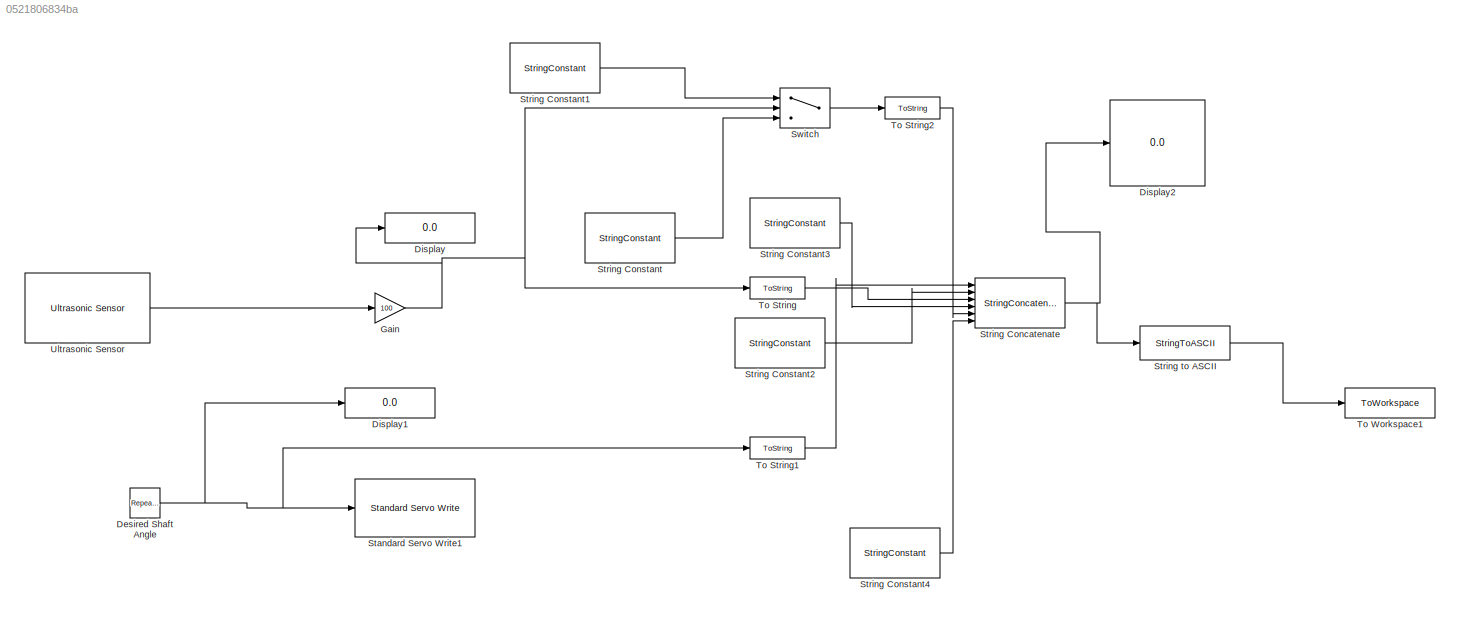
MODEL slx_0521806834ba
KIND model
CONFIG AbsTol = auto
CONFIG EnableMultiTasking = off
CONFIG FixedStep = auto
CONFIG MaxStep = auto
CONFIG MinStep = auto
CONFIG RelTol = 1e-3
CONFIG SampleTimeConstraint = Unconstrained
CONFIG SolverName = FixedStepAuto
CONFIG StartTime = 0.0
CONFIG StopTime = 5
BLOCK [Reference] Desired Shaft Angle  REF=simulink/Sources/Repeating
Sequence
Stair
  Ports = [0, 1]
  SourceBlock = simulink/Sources/Repeating\nSequence\nStair
  SourceProductBaseCode = SL
  SourceType = Repeating Sequence Stair
BLOCK [Display] Display
  Decimation = 1
  Ports = [1]
BLOCK [Display] Display1
  Decimation = 1
  Ports = [1]
BLOCK [Display] Display2
  Decimation = 1
  Ports = [1]
BLOCK [Gain] Gain
  Gain = 100
  OutDataTypeStr = uint8
  RndMeth = Nearest
BLOCK [Reference] Standard Servo Write1  REF=arduinolib/Standard Servo Write
  Ports = [1]
  SourceBlock = arduinolib/Standard Servo Write
  SourceProductBaseCode = ARDUINO
  SourceType = Arduino Standard Servo Write
BLOCK [StringConcatenate] String Concatenate
  Inputs = 6
  Ports = [6, 1]
BLOCK [StringConstant] String Constant
  String = "Obstacle"
BLOCK [StringConstant] String Constant1
  String = "No Obstacle"
BLOCK [StringConstant] String Constant2
  String = ","
BLOCK [StringConstant] String Constant3
  String = ","
BLOCK [StringConstant] String Constant4
  String = ";"
BLOCK [StringToASCII] String to ASCII
BLOCK [Switch] Switch
  Criteria = u2 > Threshold
  InputSameDT = off
  OutDataTypeStr = string
  RndMeth = Nearest
  SaturateOnIntegerOverflow = off
  Threshold = 15
BLOCK [ToString] To String
BLOCK [ToString] To String1
BLOCK [ToString] To String2
BLOCK [ToWorkspace] To Workspace1
  FixptAsFi = on
  MaxDataPoints = inf
  Ports = [1]
  SampleTime = -1
  Save2DSignal = 2-D array (concatenate along first dimension)
  VariableName = simout1
BLOCK [Reference] Ultrasonic Sensor  REF=arduinosensorlib/Ultrasonic Sensor
  Ports = [0, 1]
  SourceBlock = arduinosensorlib/Ultrasonic Sensor
  SourceProductBaseCode = ARDUINO
  SourceType = Arduino Ultrasonic Sensor
NET Desired Shaft Angle:1 -> Display1:1, Standard Servo Write1:1, To String1:1
NET Gain:1 -> Display:1, Switch:2, To String:1
NET String Concatenate:1 -> Display2:1, String to ASCII:1
LINE String Constant1:1 -> Switch:1
LINE String Constant2:1 -> String Concatenate:2
LINE String Constant3:1 -> String Concatenate:4
LINE String Constant4:1 -> String Concatenate:6
LINE String Constant:1 -> Switch:3
LINE String to ASCII:1 -> To Workspace1:1
LINE Switch:1 -> To String2:1
LINE To String1:1 -> String Concatenate:1
LINE To String2:1 -> String Concatenate:5
LINE To String:1 -> String Concatenate:3
LINE Ultrasonic Sensor:1 -> Gain:1
note: NET lines group one-source signal fan-out (src -> all destinations, sorted); 1:1 wires keep LINE
